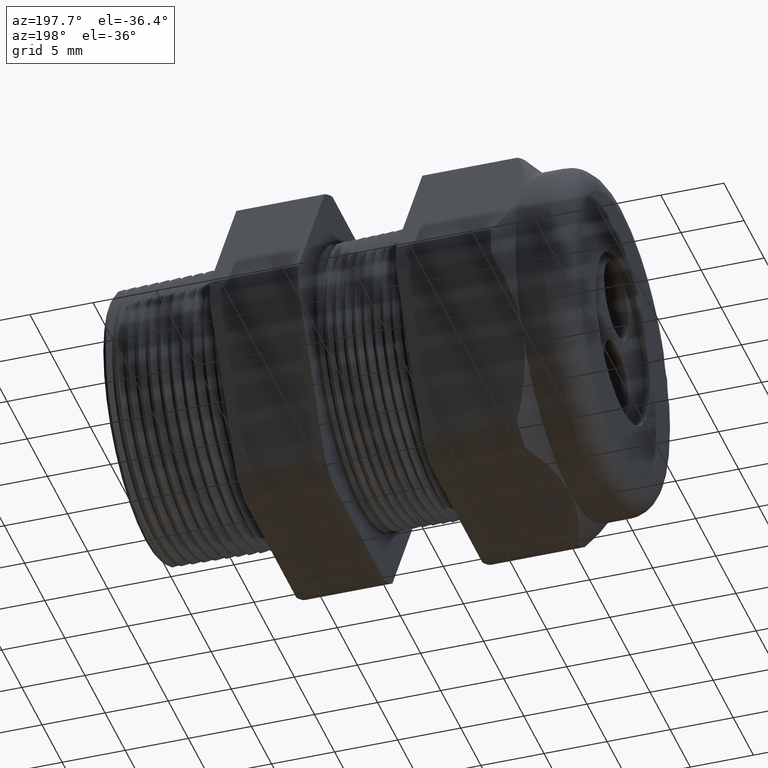
[diagram: clean part render]
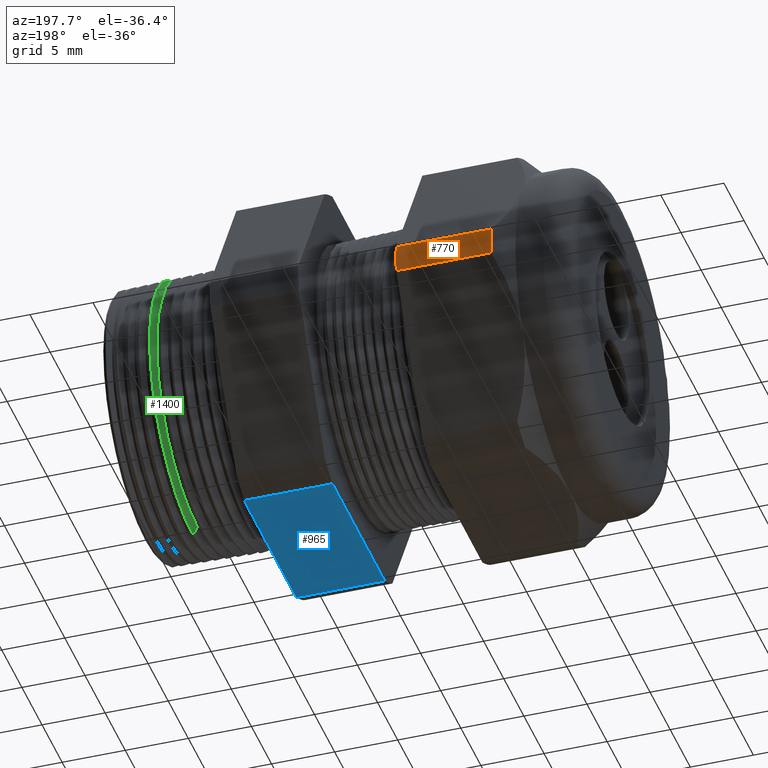
[diagram: same view with three faces highlighted in distinct colors, each labeled with its STEP entity id]
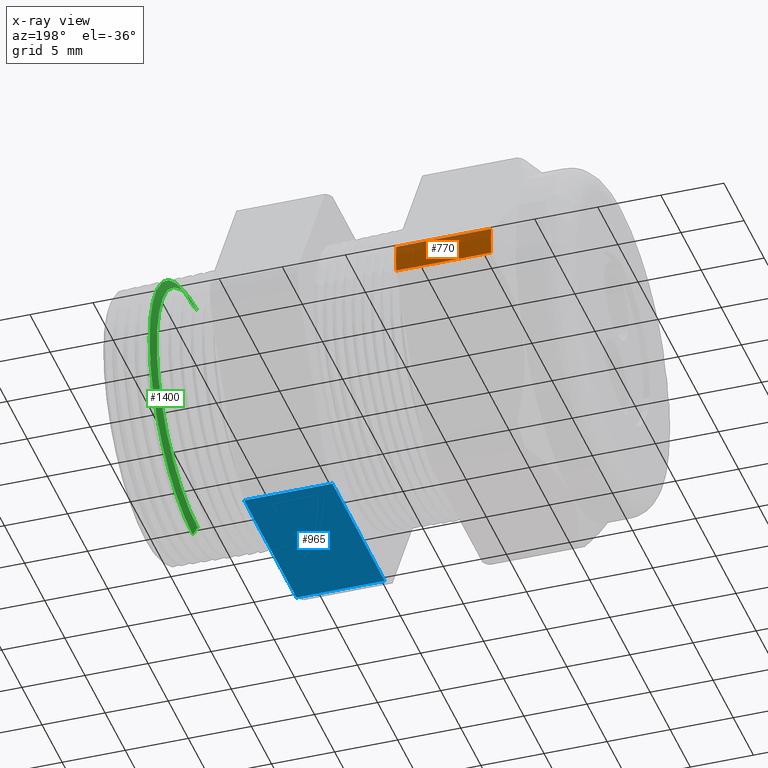
[diagram: x-ray of the same camera — body ghosted, the three highlighted faces saturated]
A machine part, auxiliary view with three faces highlighted in distinct colors.
The next image is the same camera in x-ray (body ghosted, the three faces saturated) — at least one of them is partly hidden behind the body in this view.
Their STEP definitions:

[orange] entity #770 — the highlighted cylindrical surface (partial cylindrical patch) has radius 14.9428 mm, axis along (-1, 0, 0).
#644 = VERTEX_POINT ( 'NONE', #2871 ) ;
#646 = EDGE_CURVE ( 'NONE', #647, #644, #2869, .T. ) ;
#647 = VERTEX_POINT ( 'NONE', #2856 ) ;
#770 = ADVANCED_FACE ( 'NONE', ( #3144 ), #3143, .T. ) ;
#771 = EDGE_LOOP ( 'NONE', ( #772, #773, #775, #776 ) ) ;
#772 = ORIENTED_EDGE ( 'NONE', *, *, #646, .T. ) ;
#773 = ORIENTED_EDGE ( 'NONE', *, *, #774, .T. ) ;
#774 = EDGE_CURVE ( 'NONE', #644, #789, #3137, .T. ) ;
#775 = ORIENTED_EDGE ( 'NONE', *, *, #787, .F. ) ;
#776 = ORIENTED_EDGE ( 'NONE', *, *, #777, .F. ) ;
#777 = EDGE_CURVE ( 'NONE', #647, #788, #3132, .T. ) ;
#787 = EDGE_CURVE ( 'NONE', #788, #789, #3169, .T. ) ;
#788 = VERTEX_POINT ( 'NONE', #3165 ) ;
#789 = VERTEX_POINT ( 'NONE', #3164 ) ;
#2856 = CARTESIAN_POINT ( 'NONE',  ( -0.8903149606299216600, 0.5866618723924791300, -0.04387183015273697600 ) ) ;
#2858 = DIRECTION ( 'NONE',  ( -1.000000000000000000, 0.0000000000000000000, 0.0000000000000000000 ) ) ;
#2859 = VECTOR ( 'NONE', #2858, 39.37007874015748100 ) ;
#2868 = CARTESIAN_POINT ( 'NONE',  ( 0.07999999999999996000, 0.5866618723924791300, -0.04387183015273697600 ) ) ;
#2869 = LINE ( 'NONE', #2868, #2859 ) ;
#2871 = CARTESIAN_POINT ( 'NONE',  ( -1.186345669291339000, 0.5866618723924791300, -0.04387183015273698300 ) ) ;
#3128 = DIRECTION ( 'NONE',  ( 0.0000000000000000000, 0.0000000000000000000, -1.000000000000000000 ) ) ;
#3129 = DIRECTION ( 'NONE',  ( 1.000000000000000000, 0.0000000000000000000, 0.0000000000000000000 ) ) ;
#3130 = CARTESIAN_POINT ( 'NONE',  ( -0.8903149606299216600, 0.0000000000000000000, 0.0000000000000000000 ) ) ;
#3131 = AXIS2_PLACEMENT_3D ( 'NONE', #3130, #3129, #3128 ) ;
#3132 = CIRCLE ( 'NONE', #3131, 0.5883000000000000500 ) ;
#3134 = DIRECTION ( 'NONE',  ( 0.0000000000000000000, 0.0000000000000000000, -1.000000000000000000 ) ) ;
#3135 = DIRECTION ( 'NONE',  ( 1.000000000000000000, 0.0000000000000000000, 0.0000000000000000000 ) ) ;
#3136 = AXIS2_PLACEMENT_3D ( 'NONE', #3142, #3135, #3134 ) ;
#3137 = CIRCLE ( 'NONE', #3136, 0.5883000000000000500 ) ;
#3138 = DIRECTION ( 'NONE',  ( 0.0000000000000000000, 0.0000000000000000000, 1.000000000000000000 ) ) ;
#3139 = DIRECTION ( 'NONE',  ( -1.000000000000000000, 0.0000000000000000000, 0.0000000000000000000 ) ) ;
#3140 = CARTESIAN_POINT ( 'NONE',  ( 0.07999999999999996000, 0.0000000000000000000, 0.0000000000000000000 ) ) ;
#3141 = AXIS2_PLACEMENT_3D ( 'NONE', #3140, #3139, #3138 ) ;
#3142 = CARTESIAN_POINT ( 'NONE',  ( -1.186345669291339000, 0.0000000000000000000, 0.0000000000000000000 ) ) ;
#3143 = CYLINDRICAL_SURFACE ( 'NONE', #3141, 0.5883000000000000500 ) ;
#3144 = FACE_OUTER_BOUND ( 'NONE', #771, .T. ) ;
#3164 = CARTESIAN_POINT ( 'NONE',  ( -1.186345669291339000, 0.5866618723924791300, 0.04387183015273722600 ) ) ;
#3165 = CARTESIAN_POINT ( 'NONE',  ( -0.8903149606299216600, 0.5866618723924791300, 0.04387183015273722600 ) ) ;
#3166 = DIRECTION ( 'NONE',  ( -1.000000000000000000, 0.0000000000000000000, 0.0000000000000000000 ) ) ;
#3167 = VECTOR ( 'NONE', #3166, 39.37007874015748100 ) ;
#3168 = CARTESIAN_POINT ( 'NONE',  ( 0.07999999999999996000, 0.5866618723924791300, 0.04387183015273722600 ) ) ;
#3169 = LINE ( 'NONE', #3168, #3167 ) ;

[blue] entity #965 — the highlighted planar face has unit normal (0, 0, -1).
#812 = VERTEX_POINT ( 'NONE', #3232 ) ;
#814 = EDGE_CURVE ( 'NONE', #812, #815, #3231, .T. ) ;
#815 = VERTEX_POINT ( 'NONE', #3227 ) ;
#890 = EDGE_CURVE ( 'NONE', #918, #891, #3362, .T. ) ;
#891 = VERTEX_POINT ( 'NONE', #3354 ) ;
#918 = VERTEX_POINT ( 'NONE', #3438 ) ;
#963 = EDGE_CURVE ( 'NONE', #812, #891, #3502, .T. ) ;
#965 = ADVANCED_FACE ( 'NONE', ( #3498 ), #3497, .T. ) ;
#1018 = EDGE_LOOP ( 'NONE', ( #1019, #1020, #1021, #1023 ) ) ;
#1019 = ORIENTED_EDGE ( 'NONE', *, *, #963, .T. ) ;
#1020 = ORIENTED_EDGE ( 'NONE', *, *, #890, .F. ) ;
#1021 = ORIENTED_EDGE ( 'NONE', *, *, #1022, .F. ) ;
#1022 = EDGE_CURVE ( 'NONE', #815, #918, #3569, .T. ) ;
#1023 = ORIENTED_EDGE ( 'NONE', *, *, #814, .F. ) ;
#3227 = CARTESIAN_POINT ( 'NONE',  ( -0.3100000000000000000, 0.2553368167734532700, -0.5299999999999999200 ) ) ;
#3228 = DIRECTION ( 'NONE',  ( 0.0000000000000000000, 1.000000000000000000, 0.0000000000000000000 ) ) ;
#3229 = VECTOR ( 'NONE', #3228, 39.37007874015748100 ) ;
#3230 = CARTESIAN_POINT ( 'NONE',  ( -0.3100000000000000000, 1.060000000000000100, -0.5300000000000000300 ) ) ;
#3231 = LINE ( 'NONE', #3230, #3229 ) ;
#3232 = CARTESIAN_POINT ( 'NONE',  ( -0.3100000000000000000, -0.2553368167734532700, -0.5300000000000000300 ) ) ;
#3354 = CARTESIAN_POINT ( 'NONE',  ( -0.5855905511811022600, -0.2553368167734532700, -0.5300000000000000300 ) ) ;
#3355 = DIRECTION ( 'NONE',  ( 0.0000000000000000000, -1.000000000000000000, 0.0000000000000000000 ) ) ;
#3356 = VECTOR ( 'NONE', #3355, 39.37007874015748100 ) ;
#3357 = CARTESIAN_POINT ( 'NONE',  ( -0.5855905511811022600, 1.060000000000000100, -0.5300000000000000300 ) ) ;
#3362 = LINE ( 'NONE', #3357, #3356 ) ;
#3438 = CARTESIAN_POINT ( 'NONE',  ( -0.5855905511811022600, 0.2553368167734532700, -0.5299999999999999200 ) ) ;
#3493 = DIRECTION ( 'NONE',  ( -1.000000000000000000, 0.0000000000000000000, 0.0000000000000000000 ) ) ;
#3494 = DIRECTION ( 'NONE',  ( 0.0000000000000000000, 0.0000000000000000000, -1.000000000000000000 ) ) ;
#3495 = CARTESIAN_POINT ( 'NONE',  ( 0.07999999999999996000, 0.2553368167734532700, -0.5300000000000000300 ) ) ;
#3496 = AXIS2_PLACEMENT_3D ( 'NONE', #3495, #3494, #3493 ) ;
#3497 = PLANE ( 'NONE',  #3496 ) ;
#3498 = FACE_OUTER_BOUND ( 'NONE', #1018, .T. ) ;
#3499 = DIRECTION ( 'NONE',  ( -1.000000000000000000, 0.0000000000000000000, 0.0000000000000000000 ) ) ;
#3500 = VECTOR ( 'NONE', #3499, 39.37007874015748100 ) ;
#3501 = CARTESIAN_POINT ( 'NONE',  ( 0.07999999999999996000, -0.2553368167734532700, -0.5300000000000000300 ) ) ;
#3502 = LINE ( 'NONE', #3501, #3500 ) ;
#3566 = DIRECTION ( 'NONE',  ( -1.000000000000000000, 0.0000000000000000000, 0.0000000000000000000 ) ) ;
#3567 = VECTOR ( 'NONE', #3566, 39.37007874015748100 ) ;
#3568 = CARTESIAN_POINT ( 'NONE',  ( 0.07999999999999996000, 0.2553368167734532700, -0.5299999999999999200 ) ) ;
#3569 = LINE ( 'NONE', #3568, #3567 ) ;

[green] entity #1400 — the highlighted conical surface has half-angle 58.5 deg.
#1297 = EDGE_CURVE ( 'NONE', #1415, #1372, #3929, .T. ) ;
#1298 = ORIENTED_EDGE ( 'NONE', *, *, #1340, .F. ) ;
#1340 = EDGE_CURVE ( 'NONE', #1393, #1372, #3993, .T. ) ;
#1371 = ORIENTED_EDGE ( 'NONE', *, *, #1297, .T. ) ;
#1372 = VERTEX_POINT ( 'NONE', #4000 ) ;
#1374 = EDGE_CURVE ( 'NONE', #1393, #1398, #4057, .T. ) ;
#1382 = EDGE_LOOP ( 'NONE', ( #1390, #1409, #1371, #1298 ) ) ;
#1390 = ORIENTED_EDGE ( 'NONE', *, *, #1374, .T. ) ;
#1393 = VERTEX_POINT ( 'NONE', #4028 ) ;
#1398 = VERTEX_POINT ( 'NONE', #4083 ) ;
#1400 = ADVANCED_FACE ( 'NONE', ( #4078 ), #4077, .T. ) ;
#1409 = ORIENTED_EDGE ( 'NONE', *, *, #1416, .T. ) ;
#1415 = VERTEX_POINT ( 'NONE', #4108 ) ;
#1416 = EDGE_CURVE ( 'NONE', #1398, #1415, #4107, .T. ) ;
#3922 = DIRECTION ( 'NONE',  ( 0.0000000000000000000, 0.0000000000000000000, -1.000000000000000000 ) ) ;
#3923 = DIRECTION ( 'NONE',  ( -1.000000000000000000, 0.0000000000000000000, 0.0000000000000000000 ) ) ;
#3924 = CARTESIAN_POINT ( 'NONE',  ( -0.06868745204509199600, 0.0000000000000000000, 0.0000000000000000000 ) ) ;
#3925 = AXIS2_PLACEMENT_3D ( 'NONE', #3924, #3923, #3922 ) ;
#3929 = CIRCLE ( 'NONE', #3925, 0.4234849265011170200 ) ;
#3990 = DIRECTION ( 'NONE',  ( 0.5224985647159339200, 0.0000000000000000000, -0.8526401643541013900 ) ) ;
#3991 = VECTOR ( 'NONE', #3990, 39.37007874015748100 ) ;
#3992 = CARTESIAN_POINT ( 'NONE',  ( -0.08347073567907509200, 0.0000000000000000000, -0.3993608001616932300 ) ) ;
#3993 = LINE ( 'NONE', #3992, #3991 ) ;
#4000 = CARTESIAN_POINT ( 'NONE',  ( -0.06868745204509199600, 5.186194597267450700E-017, -0.4234849265011170800 ) ) ;
#4028 = CARTESIAN_POINT ( 'NONE',  ( -0.08347073567907509200, 5.043012014335201700E-017, -0.3993608001616932300 ) ) ;
#4053 = DIRECTION ( 'NONE',  ( 0.0000000000000000000, 0.0000000000000000000, -1.000000000000000000 ) ) ;
#4054 = DIRECTION ( 'NONE',  ( 1.000000000000000000, 0.0000000000000000000, 0.0000000000000000000 ) ) ;
#4055 = CARTESIAN_POINT ( 'NONE',  ( -0.08347073567907509200, 0.0000000000000000000, 0.0000000000000000000 ) ) ;
#4056 = AXIS2_PLACEMENT_3D ( 'NONE', #4055, #4054, #4053 ) ;
#4057 = CIRCLE ( 'NONE', #4056, 0.3993608001616932300 ) ;
#4072 = DIRECTION ( 'NONE',  ( 0.0000000000000000000, 0.0000000000000000000, -1.000000000000000000 ) ) ;
#4073 = DIRECTION ( 'NONE',  ( 1.000000000000000000, 0.0000000000000000000, 0.0000000000000000000 ) ) ;
#4074 = CARTESIAN_POINT ( 'NONE',  ( -0.08347073567907509200, 0.0000000000000000000, 0.0000000000000000000 ) ) ;
#4075 = AXIS2_PLACEMENT_3D ( 'NONE', #4074, #4073, #4072 ) ;
#4077 = CONICAL_SURFACE ( 'NONE', #4075, 0.3993608001616932300, 1.021017612416700300 ) ;
#4078 = FACE_OUTER_BOUND ( 'NONE', #1382, .T. ) ;
#4083 = CARTESIAN_POINT ( 'NONE',  ( -0.08347073567907509200, 0.0000000000000000000, 0.3993608001616932300 ) ) ;
#4104 = DIRECTION ( 'NONE',  ( 0.5224985647159339200, 1.044183048100723500E-016, 0.8526401643541013900 ) ) ;
#4105 = VECTOR ( 'NONE', #4104, 39.37007874015748100 ) ;
#4106 = CARTESIAN_POINT ( 'NONE',  ( -0.08347073567907509200, 4.890759256229434100E-017, 0.3993608001616932300 ) ) ;
#4107 = LINE ( 'NONE', #4106, #4105 ) ;
#4108 = CARTESIAN_POINT ( 'NONE',  ( -0.06868745204509199600, 0.0000000000000000000, 0.4234849265011170800 ) ) ;